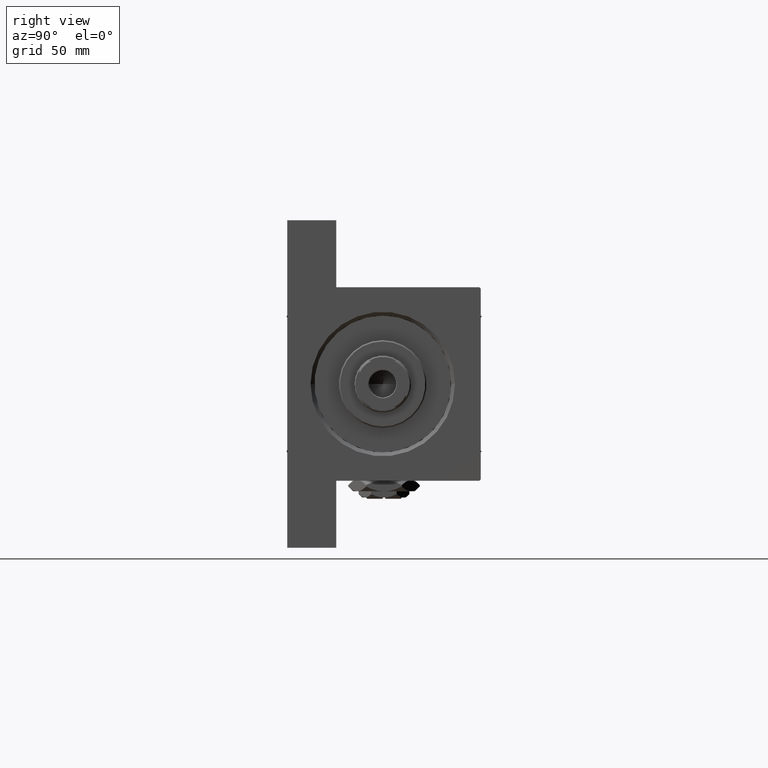
[diagram: clean part render]
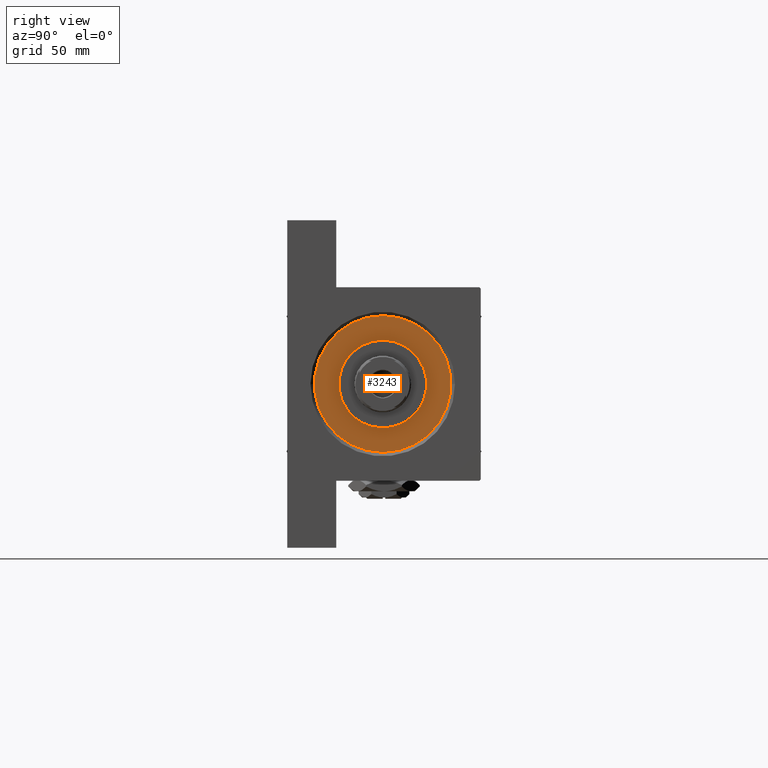
[diagram: same view with one face highlighted and labeled with its STEP entity id]
A machine part, right view. The second image highlights one B-rep face of the part: STEP entity #3243.
In plain terms, the highlighted planar face has unit normal (1, 0, 0).
Its self-contained STEP definition (entity closure, byte-faithful):
#1153 = ORIENTED_EDGE ( 'NONE', *, *, #45040, .F. ) ;
#1400 = CARTESIAN_POINT ( 'NONE',  ( 0.000000000000000000, 0.000000000000000000, 28.69999999999999929 ) ) ;
#1973 = CARTESIAN_POINT ( 'NONE',  ( 0.000000000000000000, 0.000000000000000000, 28.69999999999999929 ) ) ;
#3243 = ADVANCED_FACE ( 'NONE', ( #28265, #31534 ), #8629, .T. ) ;
#3906 = ORIENTED_EDGE ( 'NONE', *, *, #44272, .F. ) ;
#4143 = CARTESIAN_POINT ( 'NONE',  ( 0.000000000000000000, 0.000000000000000000, 28.69999999999999929 ) ) ;
#4242 = AXIS2_PLACEMENT_3D ( 'NONE', #10665, #30086, #33589 ) ;
#6843 = VERTEX_POINT ( 'NONE', #16245 ) ;
#6931 = AXIS2_PLACEMENT_3D ( 'NONE', #14725, #41145, #29159 ) ;
#8109 = DIRECTION ( 'NONE',  ( 0.000000000000000000, 0.000000000000000000, 1.000000000000000000 ) ) ;
#8629 = PLANE ( 'NONE',  #40150 ) ;
#10665 = CARTESIAN_POINT ( 'NONE',  ( 0.000000000000000000, 0.000000000000000000, 28.69999999999999929 ) ) ;
#12031 = EDGE_LOOP ( 'NONE', ( #20282, #27796 ) ) ;
#13149 = VERTEX_POINT ( 'NONE', #30094 ) ;
#13628 = CARTESIAN_POINT ( 'NONE',  ( 26.50000000000000355, 3.245314017740486554E-15, 28.69999999999999929 ) ) ;
#14725 = CARTESIAN_POINT ( 'NONE',  ( 0.000000000000000000, 0.000000000000000000, 28.69999999999999929 ) ) ;
#15164 = VERTEX_POINT ( 'NONE', #13628 ) ;
#15818 = DIRECTION ( 'NONE',  ( 1.000000000000000000, 0.000000000000000000, 0.000000000000000000 ) ) ;
#16245 = CARTESIAN_POINT ( 'NONE',  ( 17.00000000000000000, 2.081899558550500280E-15, 28.69999999999999929 ) ) ;
#16608 = CARTESIAN_POINT ( 'NONE',  ( -17.00000000000000000, 0.000000000000000000, 28.69999999999999929 ) ) ;
#17223 = AXIS2_PLACEMENT_3D ( 'NONE', #4143, #8109, #15818 ) ;
#17263 = CIRCLE ( 'NONE', #6931, 26.50000000000000355 ) ;
#20282 = ORIENTED_EDGE ( 'NONE', *, *, #44805, .T. ) ;
#20304 = DIRECTION ( 'NONE',  ( 0.000000000000000000, 0.000000000000000000, 1.000000000000000000 ) ) ;
#27796 = ORIENTED_EDGE ( 'NONE', *, *, #31971, .T. ) ;
#28265 = FACE_BOUND ( 'NONE', #28688, .T. ) ;
#28602 = DIRECTION ( 'NONE',  ( 1.000000000000000000, 0.000000000000000000, 0.000000000000000000 ) ) ;
#28688 = EDGE_LOOP ( 'NONE', ( #1153, #3906 ) ) ;
#29159 = DIRECTION ( 'NONE',  ( 1.000000000000000000, 0.000000000000000000, 0.000000000000000000 ) ) ;
#30086 = DIRECTION ( 'NONE',  ( 0.000000000000000000, 0.000000000000000000, 1.000000000000000000 ) ) ;
#30094 = CARTESIAN_POINT ( 'NONE',  ( -26.50000000000000355, 0.000000000000000000, 28.69999999999999929 ) ) ;
#31534 = FACE_OUTER_BOUND ( 'NONE', #12031, .T. ) ;
#31971 = EDGE_CURVE ( 'NONE', #15164, #13149, #47965, .T. ) ;
#32306 = VERTEX_POINT ( 'NONE', #16608 ) ;
#33589 = DIRECTION ( 'NONE',  ( 1.000000000000000000, 0.000000000000000000, 0.000000000000000000 ) ) ;
#34770 = AXIS2_PLACEMENT_3D ( 'NONE', #1973, #46592, #28602 ) ;
#40150 = AXIS2_PLACEMENT_3D ( 'NONE', #1400, #20304, #46750 ) ;
#41145 = DIRECTION ( 'NONE',  ( 0.000000000000000000, 0.000000000000000000, 1.000000000000000000 ) ) ;
#41895 = CIRCLE ( 'NONE', #17223, 17.00000000000000000 ) ;
#44272 = EDGE_CURVE ( 'NONE', #6843, #32306, #41895, .T. ) ;
#44805 = EDGE_CURVE ( 'NONE', #13149, #15164, #17263, .T. ) ;
#45040 = EDGE_CURVE ( 'NONE', #32306, #6843, #45137, .T. ) ;
#45137 = CIRCLE ( 'NONE', #34770, 17.00000000000000000 ) ;
#46592 = DIRECTION ( 'NONE',  ( 0.000000000000000000, 0.000000000000000000, 1.000000000000000000 ) ) ;
#46750 = DIRECTION ( 'NONE',  ( 1.000000000000000000, 0.000000000000000000, -0.000000000000000000 ) ) ;
#47965 = CIRCLE ( 'NONE', #4242, 26.50000000000000355 ) ;